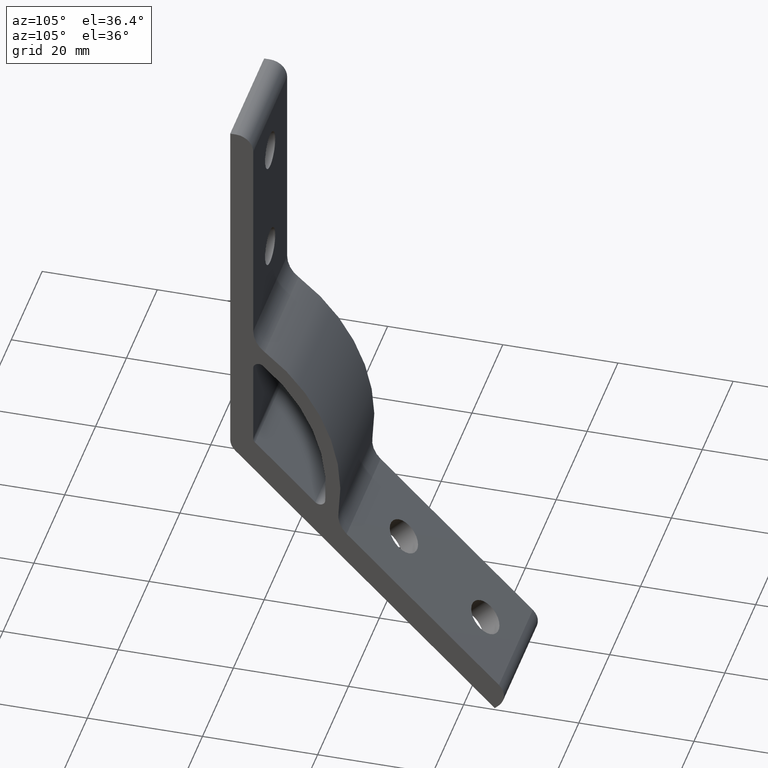
[diagram: clean part render]
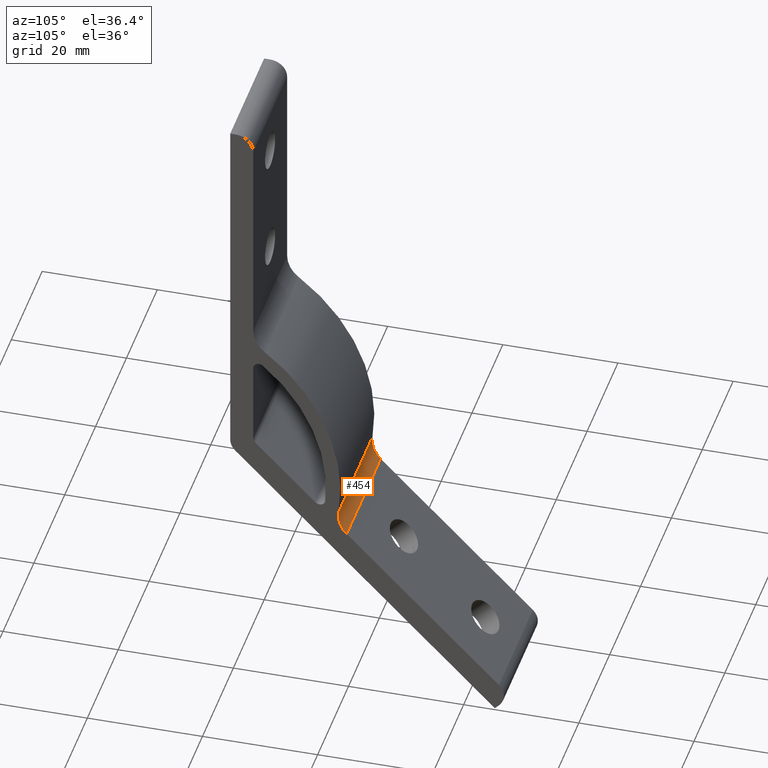
[diagram: same view with one face highlighted and labeled with its STEP entity id]
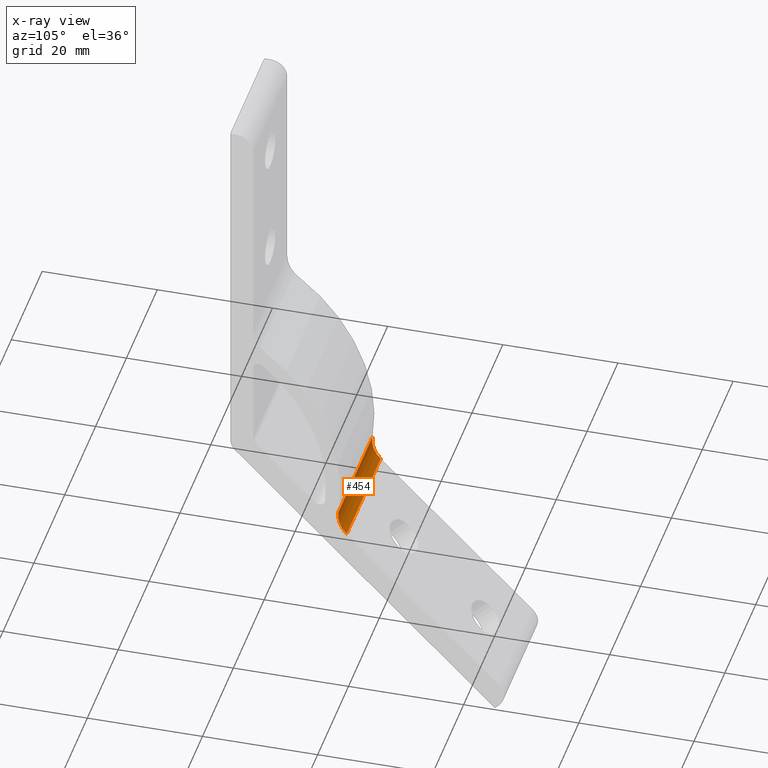
[diagram: x-ray of the same camera — body ghosted, the highlighted face saturated]
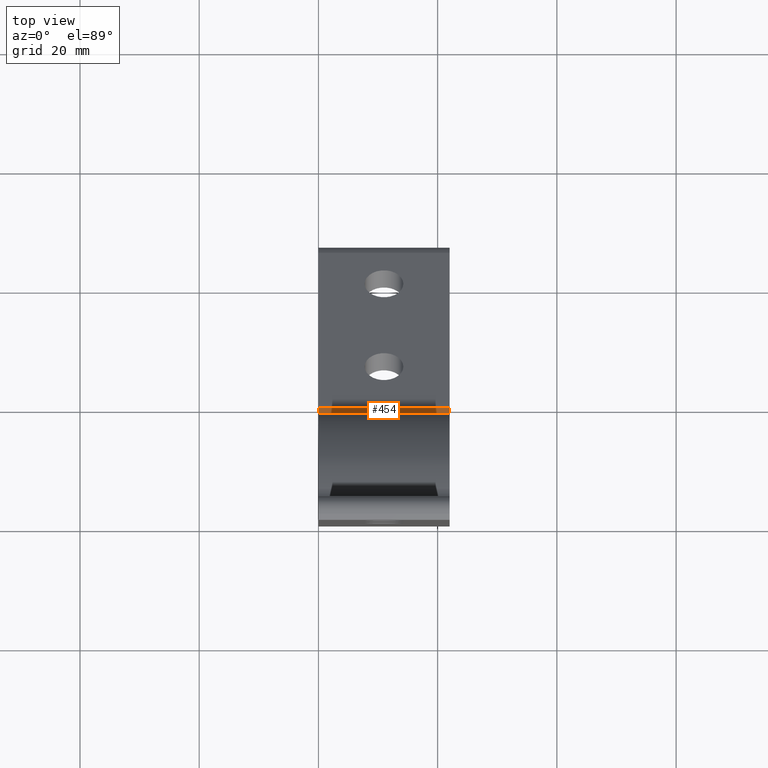
[diagram: same view with one face highlighted and labeled with its STEP entity id]
A machine part, auxiliary view. The second image highlights one B-rep face of the part: STEP entity #454.
The next image is the same camera in x-ray: the body ghosted, the highlighted face saturated — about 0% of this face is hidden behind the body in this view.
A second angle (top view) of the same face is appended — the face is thin or edge-on in the first view.
In plain terms, the highlighted cylindrical surface (edge-blend (fillet) strip) has radius 5 mm, axis along (1, 0, 0).
Its self-contained STEP definition (entity closure, byte-faithful):
#52=FACE_OUTER_BOUND('',#87,.T.);
#87=EDGE_LOOP('',(#367,#368,#369,#370));
#104=LINE('',#673,#138);
#123=LINE('',#755,#157);
#138=VECTOR('',#532,22.);
#157=VECTOR('',#615,22.);
#177=CIRCLE('',#478,5.);
#191=CIRCLE('',#503,5.);
#201=VERTEX_POINT('',#670);
#202=VERTEX_POINT('',#672);
#213=VERTEX_POINT('',#696);
#233=VERTEX_POINT('',#754);
#246=EDGE_CURVE('',#202,#201,#104,.T.);
#259=EDGE_CURVE('',#201,#213,#177,.T.);
#285=EDGE_CURVE('',#213,#233,#123,.T.);
#286=EDGE_CURVE('',#233,#202,#191,.T.);
#367=ORIENTED_EDGE('',*,*,#259,.T.);
#368=ORIENTED_EDGE('',*,*,#285,.T.);
#369=ORIENTED_EDGE('',*,*,#286,.T.);
#370=ORIENTED_EDGE('',*,*,#246,.T.);
#435=CYLINDRICAL_SURFACE('',#502,5.);
#454=ADVANCED_FACE('',(#52),#435,.F.);
#478=AXIS2_PLACEMENT_3D('',#698,#553,#554);
#502=AXIS2_PLACEMENT_3D('',#753,#613,#614);
#503=AXIS2_PLACEMENT_3D('',#756,#616,#617);
#532=DIRECTION('',(-1.,0.,0.));
#553=DIRECTION('center_axis',(-1.,0.,0.));
#554=DIRECTION('ref_axis',(0.,-0.948329831349067,-0.31728619726274));
#613=DIRECTION('center_axis',(1.,0.,0.));
#614=DIRECTION('ref_axis',(0.,-0.948329831349067,-0.31728619726274));
#615=DIRECTION('',(1.,0.,0.));
#616=DIRECTION('center_axis',(1.,0.,0.));
#617=DIRECTION('ref_axis',(0.,-0.948329831349067,-0.31728619726274));
#670=CARTESIAN_POINT('',(0.,20.2266573824107,-79.5698031329183));
#672=CARTESIAN_POINT('',(22.,20.2266573824107,-79.5698031329183));
#673=CARTESIAN_POINT('',(0.,20.2266573824107,-79.5698031329183));
#696=CARTESIAN_POINT('',(0.,18.8108780383763,-75.3382109674268));
#698=CARTESIAN_POINT('Origin',(0.,23.7621912883435,-76.0342692269856));
#753=CARTESIAN_POINT('Origin',(0.,23.7621912883435,-76.0342692269856));
#754=CARTESIAN_POINT('',(22.,18.8108780383763,-75.3382109674268));
#755=CARTESIAN_POINT('',(0.,18.8108780383763,-75.3382109674268));
#756=CARTESIAN_POINT('Origin',(22.,23.7621912883435,-76.0342692269856));